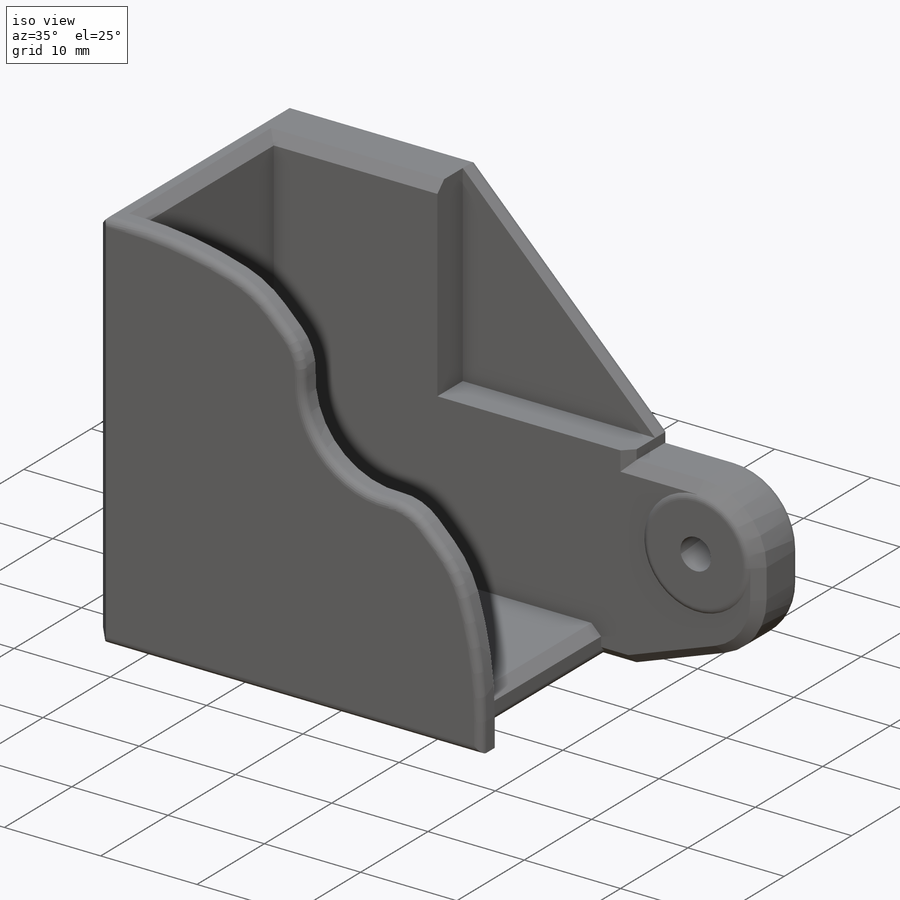
[diagram: iso view]
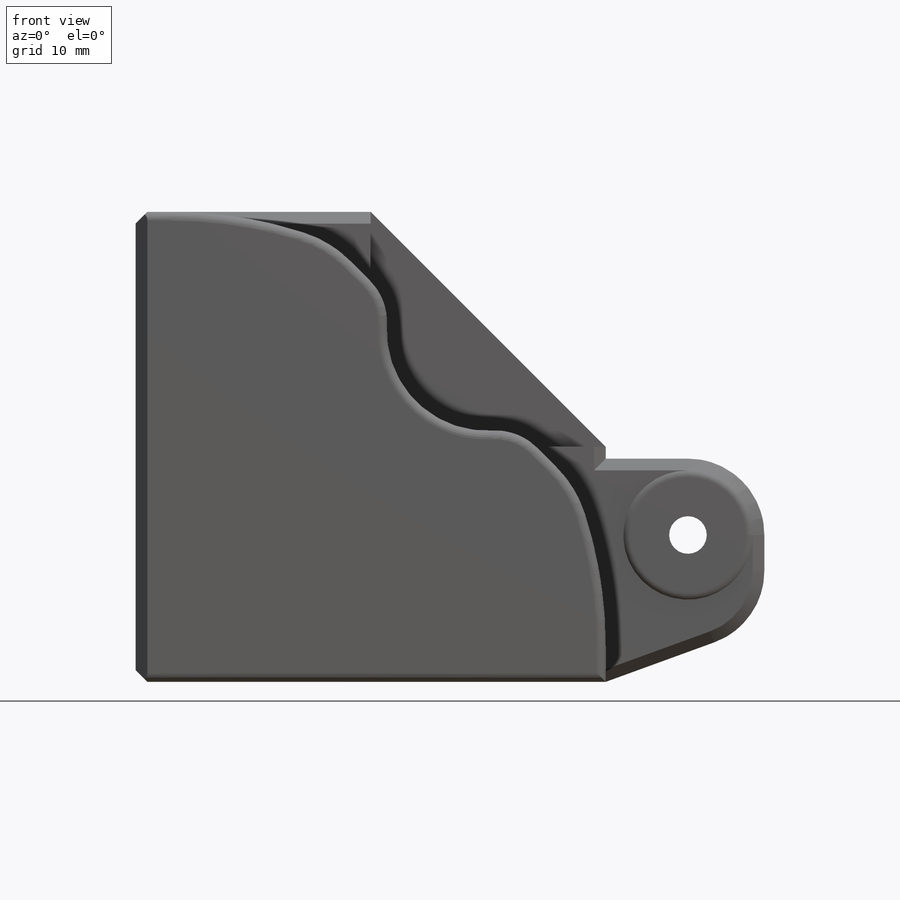
[diagram: front view]
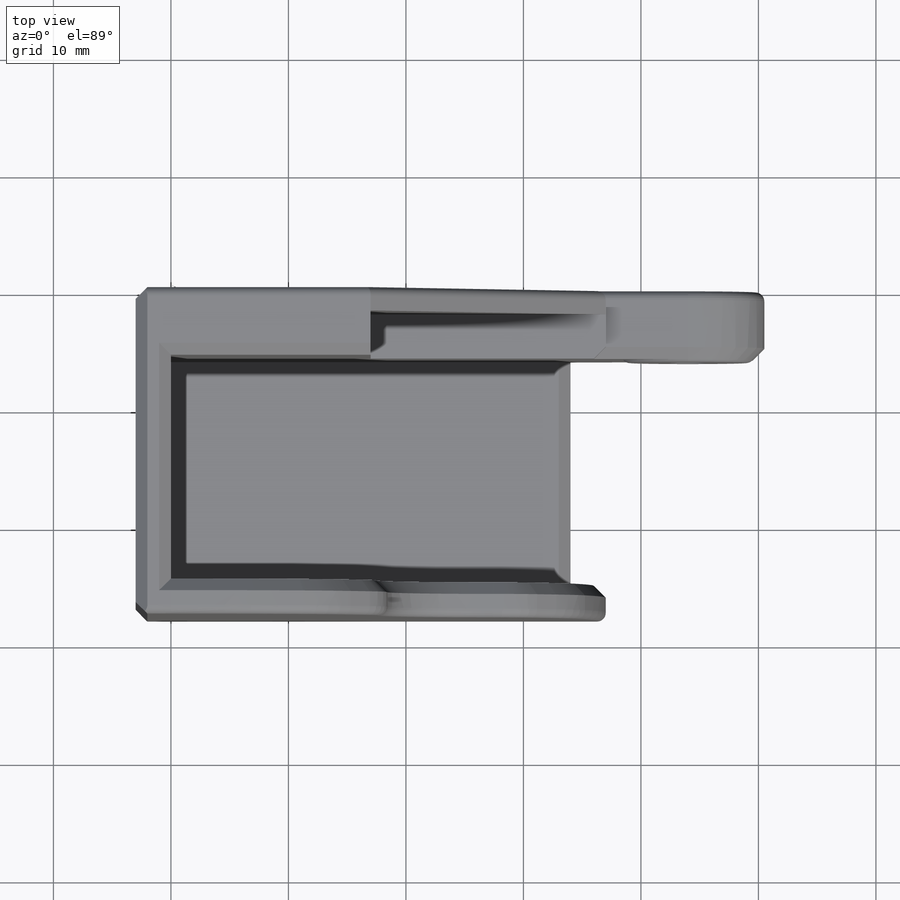
[diagram: top view]
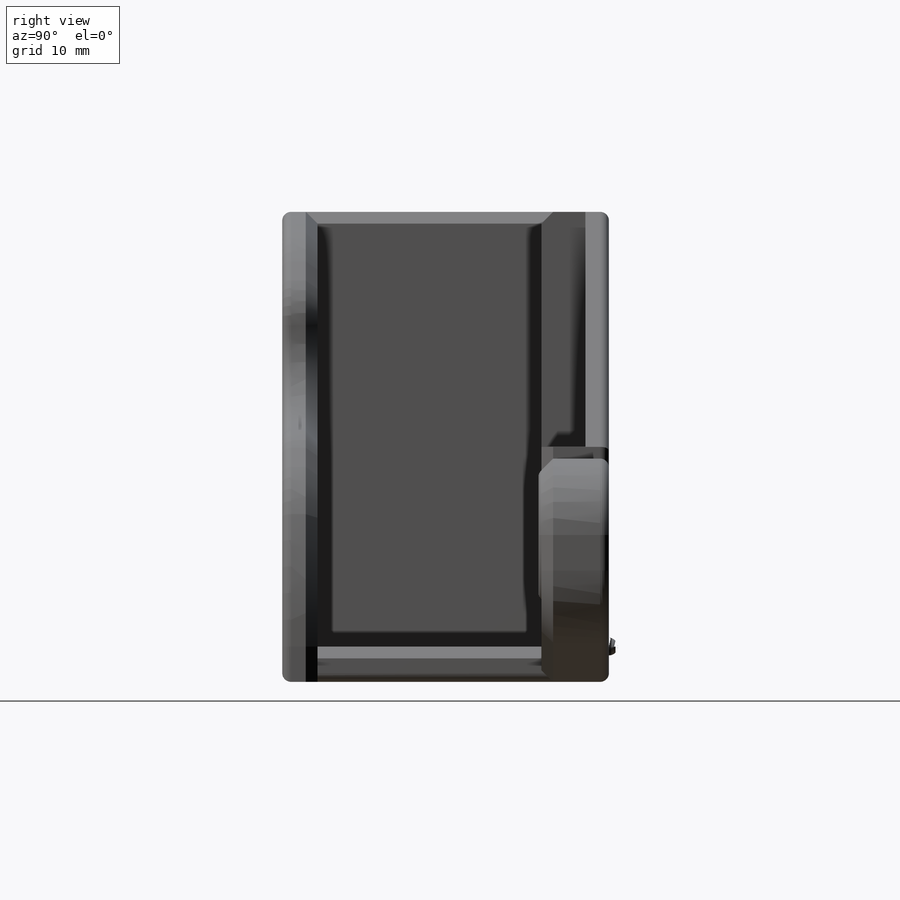
[diagram: right view]
SOLIDWORKS PART (.sldprt)
format: sldprt  version: not decoded by parser v0  size: 485,376 bytes
history: native  units: mm
features: sketch x6, extrude x5, fillet x2, material x1, cut_extrude x1, chamfer x1 (+13 scaffold rows collapsed)
feature tree (29):
  scaffold x13  (default folders/planes/origin — collapsed)
  material  "ABS"
  sketch  "Sketch1"  dims[c1.D7=3.0mm c1.D8=16.0mm c1.D9=3.0mm c2.D7=3.2mm c2.D9=~8.210672mm c2.D10=3.2mm c2.D11=8.0mm c3.D9=6.5mm c3.D11=3.2mm c3.D1=17.0mm c3.D2=17.0mm c3.D3=3.0mm c3.D4=3.0mm c3.D5=35.0mm c3.D6=35.0mm c4.D5=20.0mm c4.D6=20.0mm c4.D9=5.0mm c4.D10=9.0mm c5.D9=8.0mm c5.D8=1.0mm c6.D9=7.0mm c6.D10=6.5mm c7.D9=~10.18388mm c8.D9=70.0deg c8.D11=7.0mm]
  extrude  "Boss-Extrude1"  Depth=2mm
  sketch  "Sketch3"  dims[D1=7.0mm D2=~16.532678mm]
  extrude  "Boss-Extrude5"  Depth=3.75mm
  extrude  "Boss-Extrude6"  [1 undecoded]
  sketch  "Sketch1<5>"  dims[D1=19.05mm]
  sketch  "Sketch2"  dims[c1.D1=10.0mm c1.D2=10.0mm c2.D1=10.0mm c2.D4=17.0mm c2.D6=5.0mm c3.D1=34.0mm c3.D3=37.0mm c4.D3=45.0deg c4.D4=~14.142136mm c4.D5=32.0mm c5.D5=45.0deg c5.D7=4.0mm]
  extrude  "Boss-Extrude4"  Depth=3mm
  sketch  "Sketch5"  dims[D1=11.0mm]
  extrude  "Boss-Extrude7"  Depth=0.25mm
  sketch  "Sketch4"  dims[D1=3.0mm]
  cut_extrude  "Cut-Extrude1"  [1 undecoded]
  chamfer  "Chamfer1"  Distance=1mm Angle=45deg
  fillet  "Fillet2"  Radius=0.75mm
  fillet  "Fillet3"  Radius=0.75mm
decode coverage: 13 of 15 modeling features carry decoded parameters
note: ~ marks probable driven/reference dimensions
note: 2 parameter values undecoded
note: suppression state not decoded; provenance and decode notes live in map.json
